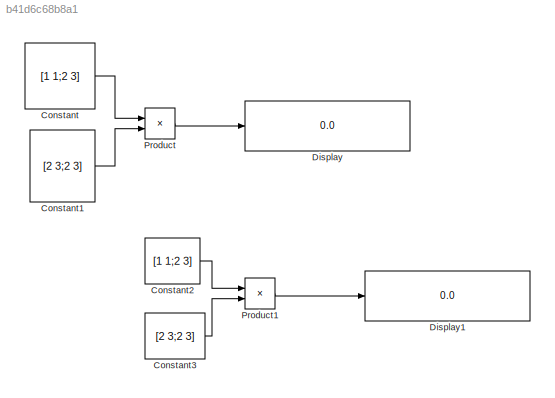
MODEL slx_b41d6c68b8a1
KIND model
CONFIG AbsTol = auto
CONFIG FixedStep = auto
CONFIG MaxStep = auto
CONFIG MinStep = auto
CONFIG RelTol = 1e-3
CONFIG SampleTimeConstraint = Unconstrained
CONFIG Solver = VariableStepAuto
CONFIG SolverMode = Auto
CONFIG SolverName = VariableStepAuto
CONFIG StartTime = 0.0
CONFIG StopTime = 10.0
BLOCK [Constant] Constant
  Value = [1 1;2 3]
BLOCK [Constant] Constant1
  Value = [2 3;2 3]
BLOCK [Constant] Constant2
  Value = [1 1;2 3]
BLOCK [Constant] Constant3
  Value = [2 3;2 3]
BLOCK [Display] Display
  Decimation = 1
  Ports = [1]
BLOCK [Display] Display1
  Decimation = 1
  Ports = [1]
BLOCK [Product] Product
  InputSameDT = off
  Multiplication = Matrix(*)
  OutDataTypeStr = Inherit: Inherit via internal rule
  Ports = [2, 1]
  RndMeth = Floor
  SaturateOnIntegerOverflow = off
BLOCK [Product] Product1
  InputSameDT = off
  OutDataTypeStr = Inherit: Inherit via internal rule
  Ports = [2, 1]
  RndMeth = Floor
  SaturateOnIntegerOverflow = off
LINE Constant1:1 -> Product:2
LINE Constant2:1 -> Product1:1
LINE Constant3:1 -> Product1:2
LINE Constant:1 -> Product:1
LINE Product1:1 -> Display1:1
LINE Product:1 -> Display:1
